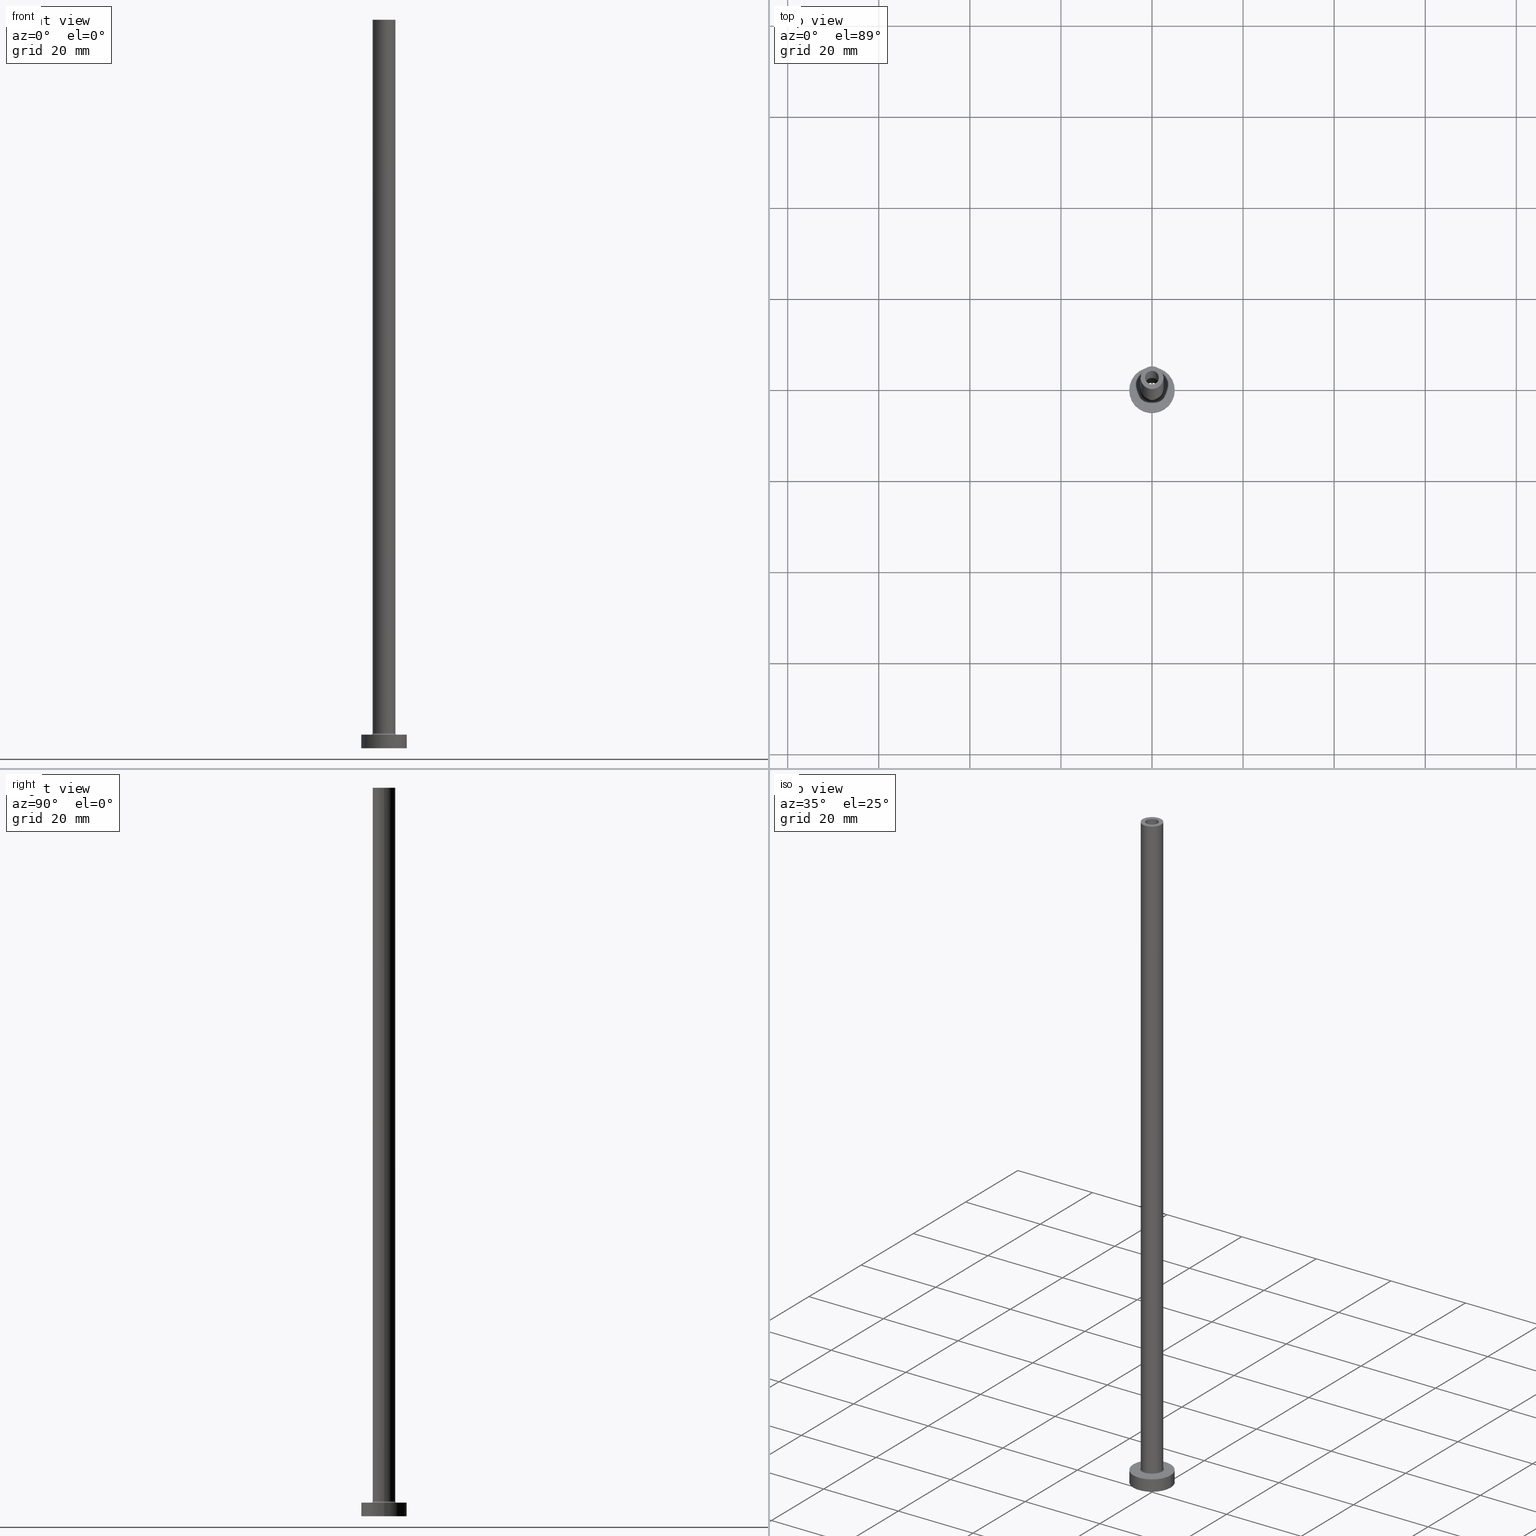
[diagram: canonical four-view strip — front | top / right | iso, engineering-drawing reading convention]
A machine part, canonical four-view strip (front | top / right | iso — engineering-drawing reading convention). The complete STEP part file that produces these views, byte-faithful:
ISO-10303-21;
HEADER;
FILE_DESCRIPTION (( 'STEP AP203' ),
    '1' );
FILE_NAME ('0fe4.STEP',
    '2023-02-13T12:04:21',
    ( '' ),
    ( '' ),
    'SwSTEP 2.0',
    'SolidWorks 2019',
    '' );
FILE_SCHEMA (( 'CONFIG_CONTROL_DESIGN' ));
ENDSEC;

DATA;
#1 = CARTESIAN_POINT ( 'NONE',  ( 0.000000000000000000, 0.000000000000000000, 3.000000000000000000 ) ) ;
#2 = MECHANICAL_CONTEXT ( 'NONE', #143, 'mechanical' ) ;
#3 = CARTESIAN_POINT ( 'NONE',  ( 5.000000000000000000, 6.123233995736766282E-16, 0.000000000000000000 ) ) ;
#4 = AXIS2_PLACEMENT_3D ( 'NONE', #27, #64, #416 ) ;
#5 = APPROVAL_PERSON_ORGANIZATION ( #171, #345, #421 ) ;
#6 = CARTESIAN_POINT ( 'NONE',  ( 2.500000000000000000, 3.061616997868383141E-16, 160.0000000000000000 ) ) ;
#7 = DIRECTION ( 'NONE',  ( -0.000000000000000000, -0.000000000000000000, -1.000000000000000000 ) ) ;
#8 = VERTEX_POINT ( 'NONE', #411 ) ;
#9 = ADVANCED_FACE ( 'NONE', ( #458 ), #134, .F. ) ;
#10 = ORIENTED_EDGE ( 'NONE', *, *, #455, .T. ) ;
#11 = AXIS2_PLACEMENT_3D ( 'NONE', #284, #309, #246 ) ;
#12 = CIRCLE ( 'NONE', #229, 2.799999999999999822 ) ;
#13 = EDGE_LOOP ( 'NONE', ( #403, #263, #367, #197 ) ) ;
#14 = ORIENTED_EDGE ( 'NONE', *, *, #42, .T. ) ;
#15 = EDGE_CURVE ( 'NONE', #311, #357, #83, .T. ) ;
#16 = CARTESIAN_POINT ( 'NONE',  ( -5.000000000000000000, 0.000000000000000000, 0.000000000000000000 ) ) ;
#17 = CIRCLE ( 'NONE', #149, 1.500000000000000222 ) ;
#18 = CARTESIAN_POINT ( 'NONE',  ( 0.000000000000000000, 0.000000000000000000, 160.0000000000000000 ) ) ;
#19 = CARTESIAN_POINT ( 'NONE',  ( 0.000000000000000000, 0.000000000000000000, 0.000000000000000000 ) ) ;
#20 = VERTEX_POINT ( 'NONE', #376 ) ;
#21 = CARTESIAN_POINT ( 'NONE',  ( 0.000000000000000000, 0.000000000000000000, 115.0000000000000000 ) ) ;
#22 = EDGE_CURVE ( 'NONE', #328, #231, #387, .T. ) ;
#23 = CARTESIAN_POINT ( 'NONE',  ( -1.650000000000000133, 0.000000000000000000, 119.6669047558312116 ) ) ;
#24 = FACE_OUTER_BOUND ( 'NONE', #151, .T. ) ;
#25 = AXIS2_PLACEMENT_3D ( 'NONE', #179, #153, #80 ) ;
#26 = CC_DESIGN_PERSON_AND_ORGANIZATION_ASSIGNMENT ( #175, #459, ( #215 ) ) ;
#27 = CARTESIAN_POINT ( 'NONE',  ( 0.000000000000000000, 0.000000000000000000, 160.0000000000000000 ) ) ;
#28 = LINE ( 'NONE', #406, #141 ) ;
#29 = DIRECTION ( 'NONE',  ( 0.000000000000000000, 0.000000000000000000, -1.000000000000000000 ) ) ;
#30 = DATE_AND_TIME ( #347, #447 ) ;
#31 = ORIENTED_EDGE ( 'NONE', *, *, #124, .T. ) ;
#32 = DATE_AND_TIME ( #348, #365 ) ;
#33 = AXIS2_PLACEMENT_3D ( 'NONE', #295, #44, #392 ) ;
#34 = AXIS2_PLACEMENT_3D ( 'NONE', #206, #373, #50 ) ;
#35 = DIRECTION ( 'NONE',  ( 0.000000000000000000, 0.000000000000000000, 1.000000000000000000 ) ) ;
#36 = DIRECTION ( 'NONE',  ( -1.000000000000000000, 0.000000000000000000, 0.000000000000000000 ) ) ;
#37 = APPLICATION_PROTOCOL_DEFINITION ( 'international standard', 'config_control_design', 1994, #143 ) ;
#38 = EDGE_CURVE ( 'NONE', #188, #417, #341, .T. ) ;
#39 = DIRECTION ( 'NONE',  ( 0.000000000000000000, 0.000000000000000000, -1.000000000000000000 ) ) ;
#40 = DIRECTION ( 'NONE',  ( -1.000000000000000000, 0.000000000000000000, 0.000000000000000000 ) ) ;
#41 = ORIENTED_EDGE ( 'NONE', *, *, #448, .F. ) ;
#42 = EDGE_CURVE ( 'NONE', #187, #128, #160, .T. ) ;
#43 = EDGE_LOOP ( 'NONE', ( #434, #394 ) ) ;
#44 = DIRECTION ( 'NONE',  ( 0.000000000000000000, 0.000000000000000000, 1.000000000000000000 ) ) ;
#45 = CC_DESIGN_PERSON_AND_ORGANIZATION_ASSIGNMENT ( #139, #66, ( #297 ) ) ;
#46 = ORIENTED_EDGE ( 'NONE', *, *, #227, .F. ) ;
#47 = CIRCLE ( 'NONE', #306, 5.000000000000000000 ) ;
#48 = ADVANCED_FACE ( 'NONE', ( #420 ), #446, .F. ) ;
#49 = APPROVAL ( #288, 'NEUR�EN�' ) ;
#50 = DIRECTION ( 'NONE',  ( -1.000000000000000000, 0.000000000000000000, 0.000000000000000000 ) ) ;
#51 = CIRCLE ( 'NONE', #371, 1.500000000000000222 ) ;
#52 = TOROIDAL_SURFACE ( 'NONE', #343, 2.799999999999999822, 0.2999999999999999889 ) ;
#53 = CYLINDRICAL_SURFACE ( 'NONE', #91, 2.500000000000000000 ) ;
#54 = DIRECTION ( 'NONE',  ( -1.000000000000000000, 0.000000000000000000, 0.000000000000000000 ) ) ;
#55 = EDGE_LOOP ( 'NONE', ( #402, #31, #10, #146 ) ) ;
#56 = ORIENTED_EDGE ( 'NONE', *, *, #15, .T. ) ;
#57 = CARTESIAN_POINT ( 'NONE',  ( -2.799999999999999822, 3.429011037612588783E-16, 3.299999999999997158 ) ) ;
#58 = ORIENTED_EDGE ( 'NONE', *, *, #38, .T. ) ;
#59 =( NAMED_UNIT ( * ) PLANE_ANGLE_UNIT ( ) SI_UNIT ( $, .RADIAN. ) );
#60 = ORIENTED_EDGE ( 'NONE', *, *, #193, .T. ) ;
#61 = CARTESIAN_POINT ( 'NONE',  ( 0.000000000000000000, 0.000000000000000000, 115.0000000000000000 ) ) ;
#62 = CYLINDRICAL_SURFACE ( 'NONE', #34, 2.500000000000000000 ) ;
#63 = LOCAL_TIME ( 13, 4, 21.00000000000000000, #391 ) ;
#64 = DIRECTION ( 'NONE',  ( 0.000000000000000000, 0.000000000000000000, 1.000000000000000000 ) ) ;
#65 = DIRECTION ( 'NONE',  ( -0.000000000000000000, -0.000000000000000000, -1.000000000000000000 ) ) ;
#66 = PERSON_AND_ORGANIZATION_ROLE ( 'design_owner' ) ;
#67 = PLANE ( 'NONE',  #350 ) ;
#68 = APPLICATION_PROTOCOL_DEFINITION ( 'international standard', 'config_control_design', 1994, #332 ) ;
#69 = CYLINDRICAL_SURFACE ( 'NONE', #172, 5.000000000000000000 ) ;
#70 = UNCERTAINTY_MEASURE_WITH_UNIT (LENGTH_MEASURE( 1.000000000000000082E-05 ), #443, 'distance_accuracy_value', 'NONE');
#71 = ADVANCED_FACE ( 'NONE', ( #130, #133 ), #67, .F. ) ;
#72 = APPROVAL_DATE_TIME ( #30, #372 ) ;
#73 = DIRECTION ( 'NONE',  ( 0.000000000000000000, 0.000000000000000000, 1.000000000000000000 ) ) ;
#74 = SECURITY_CLASSIFICATION_LEVEL ( 'unclassified' ) ;
#75 = FACE_BOUND ( 'NONE', #43, .T. ) ;
#76 = DIRECTION ( 'NONE',  ( 0.000000000000000000, 0.000000000000000000, 1.000000000000000000 ) ) ;
#77 = EDGE_CURVE ( 'NONE', #93, #128, #362, .T. ) ;
#78 = AXIS2_PLACEMENT_3D ( 'NONE', #398, #39, #112 ) ;
#79 = VECTOR ( 'NONE', #155, 1000.000000000000000 ) ;
#80 = DIRECTION ( 'NONE',  ( 1.000000000000000000, 0.000000000000000000, 0.000000000000000000 ) ) ;
#81 = ORIENTED_EDGE ( 'NONE', *, *, #322, .F. ) ;
#82 = ORIENTED_EDGE ( 'NONE', *, *, #340, .F. ) ;
#83 = CIRCLE ( 'NONE', #401, 1.500000000000000222 ) ;
#84 = APPROVAL_PERSON_ORGANIZATION ( #218, #49, #132 ) ;
#85 = ORIENTED_EDGE ( 'NONE', *, *, #195, .F. ) ;
#86 = CARTESIAN_POINT ( 'NONE',  ( 1.500000000000000222, 1.836970198721029934E-16, 160.0000000000000000 ) ) ;
#87 = ORIENTED_EDGE ( 'NONE', *, *, #119, .T. ) ;
#88 = CARTESIAN_POINT ( 'NONE',  ( 0.000000000000000000, 0.000000000000000000, 3.000000000000000000 ) ) ;
#89 = EDGE_CURVE ( 'NONE', #417, #393, #210, .T. ) ;
#90 = AXIS2_PLACEMENT_3D ( 'NONE', #61, #35, #100 ) ;
#91 = AXIS2_PLACEMENT_3D ( 'NONE', #18, #158, #54 ) ;
#92 = FACE_OUTER_BOUND ( 'NONE', #327, .T. ) ;
#93 = VERTEX_POINT ( 'NONE', #286 ) ;
#94 = CARTESIAN_POINT ( 'NONE',  ( 0.000000000000000000, 0.000000000000000000, 160.0000000000000000 ) ) ;
#95 = CARTESIAN_POINT ( 'NONE',  ( -1.650000000000000133, 0.000000000000000000, 115.0000000000000000 ) ) ;
#96 = ORIENTED_EDGE ( 'NONE', *, *, #384, .F. ) ;
#97 = DIRECTION ( 'NONE',  ( -0.000000000000000000, -0.000000000000000000, -1.000000000000000000 ) ) ;
#98 = EDGE_CURVE ( 'NONE', #187, #20, #140, .T. ) ;
#99 =( NAMED_UNIT ( * ) SI_UNIT ( $, .STERADIAN. ) SOLID_ANGLE_UNIT ( ) );
#100 = DIRECTION ( 'NONE',  ( 1.000000000000000000, 0.000000000000000000, 0.000000000000000000 ) ) ;
#101 = AXIS2_PLACEMENT_3D ( 'NONE', #259, #182, #225 ) ;
#102 = DIRECTION ( 'NONE',  ( 1.000000000000000000, 0.000000000000000000, 0.000000000000000000 ) ) ;
#103 = CALENDAR_DATE ( 2023, 13, 2 ) ;
#104 = CARTESIAN_POINT ( 'NONE',  ( 0.000000000000000000, 0.000000000000000000, 0.000000000000000000 ) ) ;
#105 = CALENDAR_DATE ( 2023, 13, 2 ) ;
#106 = PLANE ( 'NONE',  #101 ) ;
#107 = EDGE_CURVE ( 'NONE', #386, #264, #17, .T. ) ;
#108 = ORIENTED_EDGE ( 'NONE', *, *, #115, .F. ) ;
#109 = ORIENTED_EDGE ( 'NONE', *, *, #419, .T. ) ;
#110 = CIRCLE ( 'NONE', #299, 2.500000000000000000 ) ;
#111 = VECTOR ( 'NONE', #298, 1000.000000000000000 ) ;
#112 = DIRECTION ( 'NONE',  ( -1.000000000000000000, 0.000000000000000000, 0.000000000000000000 ) ) ;
#113 = PERSON_AND_ORGANIZATION_ROLE ( 'design_supplier' ) ;
#114 = FACE_OUTER_BOUND ( 'NONE', #323, .T. ) ;
#115 = EDGE_CURVE ( 'NONE', #93, #8, #407, .T. ) ;
#116 = CARTESIAN_POINT ( 'NONE',  ( -1.500000000000000222, 0.000000000000000000, 160.0000000000000000 ) ) ;
#117 = FACE_OUTER_BOUND ( 'NONE', #457, .T. ) ;
#118 = LOCAL_TIME ( 13, 4, 21.00000000000000000, #244 ) ;
#119 = EDGE_CURVE ( 'NONE', #386, #311, #452, .T. ) ;
#120 = AXIS2_PLACEMENT_3D ( 'NONE', #316, #290, #453 ) ;
#121 = DIRECTION ( 'NONE',  ( -1.000000000000000000, 0.000000000000000000, 0.000000000000000000 ) ) ;
#122 = ORIENTED_EDGE ( 'NONE', *, *, #124, .F. ) ;
#123 = CARTESIAN_POINT ( 'NONE',  ( -1.500000000000000222, 0.000000000000000000, 115.0000000000000000 ) ) ;
#124 = EDGE_CURVE ( 'NONE', #188, #440, #380, .T. ) ;
#125 = CARTESIAN_POINT ( 'NONE',  ( 0.000000000000000000, 0.000000000000000000, 3.299999999999997158 ) ) ;
#126 = PRODUCT_DEFINITION_FORMATION_WITH_SPECIFIED_SOURCE ( 'LIBOVOLN�', '', #297, .NOT_KNOWN. ) ;
#127 = FACE_BOUND ( 'NONE', #200, .T. ) ;
#128 = VERTEX_POINT ( 'NONE', #276 ) ;
#129 = ORIENTED_EDGE ( 'NONE', *, *, #331, .F. ) ;
#130 = FACE_BOUND ( 'NONE', #194, .T. ) ;
#131 = CYLINDRICAL_SURFACE ( 'NONE', #191, 1.650000000000000133 ) ;
#132 = APPROVAL_ROLE ( '' ) ;
#133 = FACE_OUTER_BOUND ( 'NONE', #442, .T. ) ;
#134 = CYLINDRICAL_SURFACE ( 'NONE', #11, 1.500000000000000222 ) ;
#135 = DIRECTION ( 'NONE',  ( 0.000000000000000000, 0.000000000000000000, 1.000000000000000000 ) ) ;
#136 = ORIENTED_EDGE ( 'NONE', *, *, #399, .T. ) ;
#137 = APPROVAL_DATE_TIME ( #32, #49 ) ;
#138 = CARTESIAN_POINT ( 'NONE',  ( 0.000000000000000000, 0.000000000000000000, 3.000000000000000000 ) ) ;
#139 = PERSON_AND_ORGANIZATION ( #257, #326 ) ;
#140 = CIRCLE ( 'NONE', #4, 2.500000000000000000 ) ;
#141 = VECTOR ( 'NONE', #370, 1000.000000000000000 ) ;
#142 = LINE ( 'NONE', #344, #79 ) ;
#143 = APPLICATION_CONTEXT ( 'configuration controlled 3d designs of mechanical parts and assemblies' ) ;
#144 = ADVANCED_FACE ( 'NONE', ( #165 ), #131, .F. ) ;
#145 = DIRECTION ( 'NONE',  ( -0.000000000000000000, -0.000000000000000000, -1.000000000000000000 ) ) ;
#146 = ORIENTED_EDGE ( 'NONE', *, *, #89, .F. ) ;
#147 = FACE_OUTER_BOUND ( 'NONE', #337, .T. ) ;
#148 = ORIENTED_EDGE ( 'NONE', *, *, #419, .F. ) ;
#149 = AXIS2_PLACEMENT_3D ( 'NONE', #94, #236, #102 ) ;
#150 = PRODUCT_DEFINITION_SHAPE ( 'NONE', 'NONE',  #215 ) ;
#151 = EDGE_LOOP ( 'NONE', ( #269, #415 ) ) ;
#152 = VERTEX_POINT ( 'NONE', #169 ) ;
#153 = DIRECTION ( 'NONE',  ( 0.000000000000000000, 0.000000000000000000, 1.000000000000000000 ) ) ;
#154 = CIRCLE ( 'NONE', #25, 5.000000000000000000 ) ;
#155 = DIRECTION ( 'NONE',  ( -0.000000000000000000, -0.000000000000000000, -1.000000000000000000 ) ) ;
#156 = ADVANCED_BREP_SHAPE_REPRESENTATION ( '0fe4', ( #356, #120 ), #439 ) ;
#157 = ORIENTED_EDGE ( 'NONE', *, *, #322, .T. ) ;
#158 = DIRECTION ( 'NONE',  ( -0.000000000000000000, -0.000000000000000000, -1.000000000000000000 ) ) ;
#159 = ORIENTED_EDGE ( 'NONE', *, *, #436, .T. ) ;
#160 = LINE ( 'NONE', #305, #223 ) ;
#161 = CIRCLE ( 'NONE', #33, 5.000000000000000000 ) ;
#162 = SECURITY_CLASSIFICATION ( '', '', #74 ) ;
#163 = DIRECTION ( 'NONE',  ( 0.000000000000000000, 0.000000000000000000, 1.000000000000000000 ) ) ;
#164 = ORIENTED_EDGE ( 'NONE', *, *, #273, .F. ) ;
#165 = FACE_OUTER_BOUND ( 'NONE', #55, .T. ) ;
#166 = COORDINATED_UNIVERSAL_TIME_OFFSET ( 1, 0, .AHEAD. ) ;
#167 = ORIENTED_EDGE ( 'NONE', *, *, #22, .T. ) ;
#168 = APPROVAL_STATUS ( 'not_yet_approved' ) ;
#169 = CARTESIAN_POINT ( 'NONE',  ( 2.799999999999999822, 0.000000000000000000, 2.999999999999998668 ) ) ;
#170 = CLOSED_SHELL ( 'NONE', ( #260, #144, #308, #368, #294, #320, #237, #71, #433, #334, #48, #361, #314, #9 ) ) ;
#171 = PERSON_AND_ORGANIZATION ( #257, #326 ) ;
#172 = AXIS2_PLACEMENT_3D ( 'NONE', #217, #353, #36 ) ;
#173 = DIRECTION ( 'NONE',  ( 0.000000000000000000, 0.000000000000000000, -1.000000000000000000 ) ) ;
#174 = ORIENTED_EDGE ( 'NONE', *, *, #211, .T. ) ;
#175 = PERSON_AND_ORGANIZATION ( #257, #326 ) ;
#176 = DIRECTION ( 'NONE',  ( 1.000000000000000000, 0.000000000000000000, 0.000000000000000000 ) ) ;
#177 = DATE_AND_TIME ( #352, #63 ) ;
#178 = ORIENTED_EDGE ( 'NONE', *, *, #98, .F. ) ;
#179 = CARTESIAN_POINT ( 'NONE',  ( 0.000000000000000000, 0.000000000000000000, 0.000000000000000000 ) ) ;
#180 = EDGE_CURVE ( 'NONE', #393, #440, #304, .T. ) ;
#181 = AXIS2_PLACEMENT_3D ( 'NONE', #339, #203, #230 ) ;
#182 = DIRECTION ( 'NONE',  ( 0.000000000000000000, 0.000000000000000000, 1.000000000000000000 ) ) ;
#183 = CC_DESIGN_DATE_AND_TIME_ASSIGNMENT ( #381, #213, ( #162 ) ) ;
#184 = ORIENTED_EDGE ( 'NONE', *, *, #278, .T. ) ;
#185 = ORIENTED_EDGE ( 'NONE', *, *, #399, .F. ) ;
#186 = DIRECTION ( 'NONE',  ( 1.000000000000000000, 0.000000000000000000, 0.000000000000000000 ) ) ;
#187 = VERTEX_POINT ( 'NONE', #6 ) ;
#188 = VERTEX_POINT ( 'NONE', #424 ) ;
#189 = CARTESIAN_POINT ( 'NONE',  ( 1.500000000000000222, 1.836970198721029934E-16, 115.0000000000000000 ) ) ;
#190 = ORIENTED_EDGE ( 'NONE', *, *, #107, .F. ) ;
#191 = AXIS2_PLACEMENT_3D ( 'NONE', #277, #241, #413 ) ;
#192 = APPROVAL_PERSON_ORGANIZATION ( #313, #372, #253 ) ;
#193 = EDGE_CURVE ( 'NONE', #264, #386, #431, .T. ) ;
#194 = EDGE_LOOP ( 'NONE', ( #287, #400 ) ) ;
#195 = EDGE_CURVE ( 'NONE', #389, #409, #161, .T. ) ;
#196 = AXIS2_PLACEMENT_3D ( 'NONE', #1, #7, #321 ) ;
#197 = ORIENTED_EDGE ( 'NONE', *, *, #436, .F. ) ;
#198 = CC_DESIGN_SECURITY_CLASSIFICATION ( #162, ( #126 ) ) ;
#199 = DIRECTION ( 'NONE',  ( 0.000000000000000000, 0.000000000000000000, 1.000000000000000000 ) ) ;
#200 = EDGE_LOOP ( 'NONE', ( #445, #190 ) ) ;
#201 = DIRECTION ( 'NONE',  ( -0.000000000000000000, -0.000000000000000000, -1.000000000000000000 ) ) ;
#202 = DIRECTION ( 'NONE',  ( 1.000000000000000000, 0.000000000000000000, 0.000000000000000000 ) ) ;
#203 = DIRECTION ( 'NONE',  ( 0.000000000000000000, -1.000000000000000000, 0.000000000000000000 ) ) ;
#204 = DIRECTION ( 'NONE',  ( 1.000000000000000000, 0.000000000000000000, 0.000000000000000000 ) ) ;
#205 = CC_DESIGN_APPROVAL ( #372, ( #126 ) ) ;
#206 = CARTESIAN_POINT ( 'NONE',  ( 0.000000000000000000, 0.000000000000000000, 160.0000000000000000 ) ) ;
#207 = ORIENTED_EDGE ( 'NONE', *, *, #211, .F. ) ;
#208 = DIRECTION ( 'NONE',  ( -1.000000000000000000, 1.224646799147353207E-16, 0.000000000000000000 ) ) ;
#209 = DATE_AND_TIME ( #105, #118 ) ;
#210 = LINE ( 'NONE', #23, #425 ) ;
#211 = EDGE_CURVE ( 'NONE', #389, #328, #319, .T. ) ;
#212 = ORIENTED_EDGE ( 'NONE', *, *, #89, .T. ) ;
#213 = DATE_TIME_ROLE ( 'classification_date' ) ;
#214 = DIRECTION ( 'NONE',  ( 0.000000000000000000, 0.000000000000000000, 1.000000000000000000 ) ) ;
#215 = PRODUCT_DEFINITION ( 'NEZN�M�', '', #126, #422 ) ;
#216 = AXIS2_PLACEMENT_3D ( 'NONE', #423, #429, #40 ) ;
#217 = CARTESIAN_POINT ( 'NONE',  ( 0.000000000000000000, 0.000000000000000000, 3.000000000000000000 ) ) ;
#218 = PERSON_AND_ORGANIZATION ( #257, #326 ) ;
#219 = DIRECTION ( 'NONE',  ( 1.000000000000000000, 0.000000000000000000, 0.000000000000000000 ) ) ;
#220 = PERSON_AND_ORGANIZATION ( #257, #326 ) ;
#221 = CARTESIAN_POINT ( 'NONE',  ( 0.000000000000000000, 0.000000000000000000, 115.0000000000000000 ) ) ;
#222 = EDGE_LOOP ( 'NONE', ( #330, #56 ) ) ;
#223 = VECTOR ( 'NONE', #97, 1000.000000000000000 ) ;
#224 = AXIS2_PLACEMENT_3D ( 'NONE', #21, #199, #412 ) ;
#225 = DIRECTION ( 'NONE',  ( 1.000000000000000000, 0.000000000000000000, -0.000000000000000000 ) ) ;
#226 = CARTESIAN_POINT ( 'NONE',  ( 0.000000000000000000, 0.000000000000000000, 115.0000000000000000 ) ) ;
#227 = EDGE_CURVE ( 'NONE', #20, #187, #110, .T. ) ;
#228 = CC_DESIGN_PERSON_AND_ORGANIZATION_ASSIGNMENT ( #426, #418, ( #126 ) ) ;
#229 = AXIS2_PLACEMENT_3D ( 'NONE', #88, #201, #232 ) ;
#230 = DIRECTION ( 'NONE',  ( 0.000000000000000000, 0.000000000000000000, -1.000000000000000000 ) ) ;
#231 = VERTEX_POINT ( 'NONE', #16 ) ;
#232 = DIRECTION ( 'NONE',  ( 1.000000000000000000, 0.000000000000000000, 0.000000000000000000 ) ) ;
#233 = ORIENTED_EDGE ( 'NONE', *, *, #107, .T. ) ;
#234 = AXIS2_PLACEMENT_3D ( 'NONE', #364, #289, #219 ) ;
#235 = PLANE ( 'NONE',  #351 ) ;
#236 = DIRECTION ( 'NONE',  ( 0.000000000000000000, 0.000000000000000000, 1.000000000000000000 ) ) ;
#237 = ADVANCED_FACE ( 'NONE', ( #75, #117 ), #106, .T. ) ;
#238 = LINE ( 'NONE', #335, #111 ) ;
#239 = DIRECTION ( 'NONE',  ( 1.000000000000000000, 0.000000000000000000, 0.000000000000000000 ) ) ;
#240 = DIRECTION ( 'NONE',  ( 0.000000000000000000, 0.000000000000000000, 1.000000000000000000 ) ) ;
#241 = DIRECTION ( 'NONE',  ( 0.000000000000000000, 0.000000000000000000, -1.000000000000000000 ) ) ;
#242 = AXIS2_PLACEMENT_3D ( 'NONE', #377, #65, #254 ) ;
#243 = DIRECTION ( 'NONE',  ( 1.224646799147353207E-16, 1.000000000000000000, -0.000000000000000000 ) ) ;
#244 = COORDINATED_UNIVERSAL_TIME_OFFSET ( 1, 0, .AHEAD. ) ;
#245 = PRODUCT_RELATED_PRODUCT_CATEGORY ( 'detail', '', ( #297 ) ) ;
#246 = DIRECTION ( 'NONE',  ( -1.000000000000000000, 0.000000000000000000, 0.000000000000000000 ) ) ;
#247 = DIRECTION ( 'NONE',  ( 1.000000000000000000, 0.000000000000000000, -0.000000000000000000 ) ) ;
#248 = EDGE_LOOP ( 'NONE', ( #178, #14, #136, #129 ) ) ;
#249 = AXIS2_PLACEMENT_3D ( 'NONE', #383, #346, #204 ) ;
#250 = CIRCLE ( 'NONE', #388, 2.500000000000000000 ) ;
#251 = EDGE_LOOP ( 'NONE', ( #60, #87, #164, #96 ) ) ;
#252 = DIRECTION ( 'NONE',  ( 0.000000000000000000, 0.000000000000000000, 1.000000000000000000 ) ) ;
#253 = APPROVAL_ROLE ( '' ) ;
#254 = DIRECTION ( 'NONE',  ( 1.000000000000000000, 0.000000000000000000, 0.000000000000000000 ) ) ;
#255 = FACE_OUTER_BOUND ( 'NONE', #13, .T. ) ;
#256 = AXIS2_PLACEMENT_3D ( 'NONE', #342, #349, #202 ) ;
#257 = PERSON ( 'NEUR�EN�', 'NEUR�EN�', 'NEUR�EN�', ('NEUR�EN�'), ('NEUR�EN�'), ('NEUR�EN�') ) ;
#258 = AXIS2_PLACEMENT_3D ( 'NONE', #19, #333, #410 ) ;
#259 = CARTESIAN_POINT ( 'NONE',  ( 0.000000000000000000, 0.000000000000000000, 3.000000000000000000 ) ) ;
#260 = ADVANCED_FACE ( 'NONE', ( #292 ), #427, .F. ) ;
#261 = CC_DESIGN_PERSON_AND_ORGANIZATION_ASSIGNMENT ( #461, #113, ( #126 ) ) ;
#262 = ORIENTED_EDGE ( 'NONE', *, *, #384, .T. ) ;
#263 = ORIENTED_EDGE ( 'NONE', *, *, #115, .T. ) ;
#264 = VERTEX_POINT ( 'NONE', #116 ) ;
#265 = EDGE_CURVE ( 'NONE', #152, #8, #396, .T. ) ;
#266 = ORIENTED_EDGE ( 'NONE', *, *, #278, .F. ) ;
#267 = AXIS2_PLACEMENT_3D ( 'NONE', #104, #214, #374 ) ;
#268 = AXIS2_PLACEMENT_3D ( 'NONE', #226, #324, #247 ) ;
#269 = ORIENTED_EDGE ( 'NONE', *, *, #227, .T. ) ;
#270 = FACE_OUTER_BOUND ( 'NONE', #366, .T. ) ;
#271 = CARTESIAN_POINT ( 'NONE',  ( 0.000000000000000000, 0.000000000000000000, 119.6669047558312116 ) ) ;
#272 = AXIS2_PLACEMENT_3D ( 'NONE', #57, #243, #208 ) ;
#273 = EDGE_CURVE ( 'NONE', #357, #311, #51, .T. ) ;
#274 = CIRCLE ( 'NONE', #258, 1.650000000000000133 ) ;
#275 = CARTESIAN_POINT ( 'NONE',  ( -1.650000000000000133, 0.000000000000000000, 0.000000000000000000 ) ) ;
#276 = CARTESIAN_POINT ( 'NONE',  ( 2.500000000000000000, 3.061616997868383141E-16, 3.299999999999997158 ) ) ;
#277 = CARTESIAN_POINT ( 'NONE',  ( 0.000000000000000000, 0.000000000000000000, 119.6669047558312116 ) ) ;
#278 = EDGE_CURVE ( 'NONE', #231, #328, #154, .T. ) ;
#279 = COORDINATED_UNIVERSAL_TIME_OFFSET ( 1, 0, .AHEAD. ) ;
#280 = DIRECTION ( 'NONE',  ( 1.000000000000000000, 0.000000000000000000, -0.000000000000000000 ) ) ;
#281 = VECTOR ( 'NONE', #145, 1000.000000000000000 ) ;
#282 = LOCAL_TIME ( 13, 4, 21.00000000000000000, #166 ) ;
#283 = COORDINATED_UNIVERSAL_TIME_OFFSET ( 1, 0, .AHEAD. ) ;
#284 = CARTESIAN_POINT ( 'NONE',  ( 0.000000000000000000, 0.000000000000000000, 160.0000000000000000 ) ) ;
#285 = ORIENTED_EDGE ( 'NONE', *, *, #22, .F. ) ;
#286 = CARTESIAN_POINT ( 'NONE',  ( -2.500000000000000000, 0.000000000000000000, 3.299999999999997158 ) ) ;
#287 = ORIENTED_EDGE ( 'NONE', *, *, #180, .F. ) ;
#288 = APPROVAL_STATUS ( 'not_yet_approved' ) ;
#289 = DIRECTION ( 'NONE',  ( 0.000000000000000000, 0.000000000000000000, 1.000000000000000000 ) ) ;
#290 = DIRECTION ( 'NONE',  ( 0.000000000000000000, 0.000000000000000000, 1.000000000000000000 ) ) ;
#291 = DIRECTION ( 'NONE',  ( 0.000000000000000000, 0.000000000000000000, 1.000000000000000000 ) ) ;
#292 = FACE_OUTER_BOUND ( 'NONE', #251, .T. ) ;
#293 = EDGE_LOOP ( 'NONE', ( #108, #185, #159, #41 ) ) ;
#294 = ADVANCED_FACE ( 'NONE', ( #114 ), #390, .T. ) ;
#295 = CARTESIAN_POINT ( 'NONE',  ( 0.000000000000000000, 0.000000000000000000, 3.000000000000000000 ) ) ;
#296 = AXIS2_PLACEMENT_3D ( 'NONE', #271, #336, #121 ) ;
#297 = PRODUCT ( '0fe4', '0fe4', '', ( #2 ) ) ;
#298 = DIRECTION ( 'NONE',  ( -0.000000000000000000, -0.000000000000000000, -1.000000000000000000 ) ) ;
#299 = AXIS2_PLACEMENT_3D ( 'NONE', #363, #291, #186 ) ;
#300 = CYLINDRICAL_SURFACE ( 'NONE', #296, 1.650000000000000133 ) ;
#301 = DIRECTION ( 'NONE',  ( 1.000000000000000000, 0.000000000000000000, -0.000000000000000000 ) ) ;
#302 = CARTESIAN_POINT ( 'NONE',  ( 5.000000000000000000, 6.123233995736766282E-16, 3.000000000000000000 ) ) ;
#303 = CC_DESIGN_DATE_AND_TIME_ASSIGNMENT ( #209, #456, ( #215 ) ) ;
#304 = CIRCLE ( 'NONE', #242, 1.650000000000000133 ) ;
#305 = CARTESIAN_POINT ( 'NONE',  ( 2.500000000000000000, 3.061616997868383141E-16, 160.0000000000000000 ) ) ;
#306 = AXIS2_PLACEMENT_3D ( 'NONE', #138, #73, #317 ) ;
#307 = DIRECTION ( 'NONE',  ( 0.000000000000000000, 0.000000000000000000, -1.000000000000000000 ) ) ;
#308 = ADVANCED_FACE ( 'NONE', ( #255 ), #52, .F. ) ;
#309 = DIRECTION ( 'NONE',  ( 0.000000000000000000, 0.000000000000000000, -1.000000000000000000 ) ) ;
#310 = APPROVAL_DATE_TIME ( #177, #345 ) ;
#311 = VERTEX_POINT ( 'NONE', #189 ) ;
#312 = CARTESIAN_POINT ( 'NONE',  ( 0.000000000000000000, 0.000000000000000000, 115.0000000000000000 ) ) ;
#313 = PERSON_AND_ORGANIZATION ( #257, #326 ) ;
#314 = ADVANCED_FACE ( 'NONE', ( #315, #147 ), #430, .F. ) ;
#315 = FACE_BOUND ( 'NONE', #222, .T. ) ;
#316 = CARTESIAN_POINT ( 'NONE',  ( 0.000000000000000000, 0.000000000000000000, 0.000000000000000000 ) ) ;
#317 = DIRECTION ( 'NONE',  ( 1.000000000000000000, 0.000000000000000000, 0.000000000000000000 ) ) ;
#318 = CIRCLE ( 'NONE', #224, 1.650000000000000133 ) ;
#319 = LINE ( 'NONE', #358, #281 ) ;
#320 = ADVANCED_FACE ( 'NONE', ( #385 ), #69, .T. ) ;
#321 = DIRECTION ( 'NONE',  ( 1.000000000000000000, 0.000000000000000000, 0.000000000000000000 ) ) ;
#322 = EDGE_CURVE ( 'NONE', #409, #389, #47, .T. ) ;
#323 = EDGE_LOOP ( 'NONE', ( #85, #174, #167, #148 ) ) ;
#324 = DIRECTION ( 'NONE',  ( 0.000000000000000000, 0.000000000000000000, 1.000000000000000000 ) ) ;
#325 = VECTOR ( 'NONE', #307, 1000.000000000000000 ) ;
#326 = ORGANIZATION ( 'NEUR�EN�', 'NEUR�EN�', '' ) ;
#327 = EDGE_LOOP ( 'NONE', ( #354, #46, #369, #375 ) ) ;
#328 = VERTEX_POINT ( 'NONE', #3 ) ;
#329 = EDGE_LOOP ( 'NONE', ( #207, #81, #109, #184 ) ) ;
#330 = ORIENTED_EDGE ( 'NONE', *, *, #273, .T. ) ;
#331 = EDGE_CURVE ( 'NONE', #20, #93, #142, .T. ) ;
#332 = APPLICATION_CONTEXT ( 'configuration controlled 3d designs of mechanical parts and assemblies' ) ;
#333 = DIRECTION ( 'NONE',  ( -0.000000000000000000, -0.000000000000000000, -1.000000000000000000 ) ) ;
#334 = ADVANCED_FACE ( 'NONE', ( #127, #24 ), #235, .T. ) ;
#335 = CARTESIAN_POINT ( 'NONE',  ( -5.000000000000000000, 0.000000000000000000, 3.000000000000000000 ) ) ;
#336 = DIRECTION ( 'NONE',  ( 0.000000000000000000, 0.000000000000000000, -1.000000000000000000 ) ) ;
#337 = EDGE_LOOP ( 'NONE', ( #82, #451 ) ) ;
#338 = CARTESIAN_POINT ( 'NONE',  ( 1.500000000000000222, 1.836970198721029934E-16, 160.0000000000000000 ) ) ;
#339 = CARTESIAN_POINT ( 'NONE',  ( 2.799999999999999822, 0.000000000000000000, 3.299999999999997158 ) ) ;
#340 = EDGE_CURVE ( 'NONE', #417, #188, #318, .T. ) ;
#341 = CIRCLE ( 'NONE', #90, 1.650000000000000133 ) ;
#342 = CARTESIAN_POINT ( 'NONE',  ( 0.000000000000000000, 0.000000000000000000, 3.299999999999997158 ) ) ;
#343 = AXIS2_PLACEMENT_3D ( 'NONE', #395, #76, #176 ) ;
#344 = CARTESIAN_POINT ( 'NONE',  ( -2.500000000000000000, 0.000000000000000000, 160.0000000000000000 ) ) ;
#345 = APPROVAL ( #355, 'NEUR�EN�' ) ;
#346 = DIRECTION ( 'NONE',  ( 0.000000000000000000, 0.000000000000000000, 1.000000000000000000 ) ) ;
#347 = CALENDAR_DATE ( 2023, 13, 2 ) ;
#348 = CALENDAR_DATE ( 2023, 13, 2 ) ;
#349 = DIRECTION ( 'NONE',  ( 0.000000000000000000, 0.000000000000000000, 1.000000000000000000 ) ) ;
#350 = AXIS2_PLACEMENT_3D ( 'NONE', #460, #135, #280 ) ;
#351 = AXIS2_PLACEMENT_3D ( 'NONE', #441, #240, #301 ) ;
#352 = CALENDAR_DATE ( 2023, 13, 2 ) ;
#353 = DIRECTION ( 'NONE',  ( -0.000000000000000000, -0.000000000000000000, -1.000000000000000000 ) ) ;
#354 = ORIENTED_EDGE ( 'NONE', *, *, #42, .F. ) ;
#355 = APPROVAL_STATUS ( 'not_yet_approved' ) ;
#356 = MANIFOLD_SOLID_BREP ( 'Odebrat vysunut�m4', #170 ) ;
#357 = VERTEX_POINT ( 'NONE', #123 ) ;
#358 = CARTESIAN_POINT ( 'NONE',  ( 5.000000000000000000, 6.123233995736766282E-16, 3.000000000000000000 ) ) ;
#359 = PERSON_AND_ORGANIZATION_ROLE ( 'classification_officer' ) ;
#360 = DIRECTION ( 'NONE',  ( 1.000000000000000000, 0.000000000000000000, 0.000000000000000000 ) ) ;
#361 = ADVANCED_FACE ( 'NONE', ( #270 ), #300, .F. ) ;
#362 = CIRCLE ( 'NONE', #256, 2.500000000000000000 ) ;
#363 = CARTESIAN_POINT ( 'NONE',  ( 0.000000000000000000, 0.000000000000000000, 160.0000000000000000 ) ) ;
#364 = CARTESIAN_POINT ( 'NONE',  ( 0.000000000000000000, 0.000000000000000000, 160.0000000000000000 ) ) ;
#365 = LOCAL_TIME ( 13, 4, 21.00000000000000000, #279 ) ;
#366 = EDGE_LOOP ( 'NONE', ( #122, #58, #212, #405 ) ) ;
#367 = ORIENTED_EDGE ( 'NONE', *, *, #265, .F. ) ;
#368 = ADVANCED_FACE ( 'NONE', ( #444 ), #62, .T. ) ;
#369 = ORIENTED_EDGE ( 'NONE', *, *, #331, .T. ) ;
#370 = DIRECTION ( 'NONE',  ( 0.000000000000000000, 0.000000000000000000, -1.000000000000000000 ) ) ;
#371 = AXIS2_PLACEMENT_3D ( 'NONE', #221, #252, #360 ) ;
#372 = APPROVAL ( #168, 'NEUR�EN�' ) ;
#373 = DIRECTION ( 'NONE',  ( -0.000000000000000000, -0.000000000000000000, -1.000000000000000000 ) ) ;
#374 = DIRECTION ( 'NONE',  ( 1.000000000000000000, 0.000000000000000000, 0.000000000000000000 ) ) ;
#375 = ORIENTED_EDGE ( 'NONE', *, *, #77, .T. ) ;
#376 = CARTESIAN_POINT ( 'NONE',  ( -2.500000000000000000, 0.000000000000000000, 160.0000000000000000 ) ) ;
#377 = CARTESIAN_POINT ( 'NONE',  ( 0.000000000000000000, 0.000000000000000000, 0.000000000000000000 ) ) ;
#378 = CC_DESIGN_APPROVAL ( #345, ( #215 ) ) ;
#379 = ORIENTED_EDGE ( 'NONE', *, *, #119, .F. ) ;
#380 = LINE ( 'NONE', #449, #325 ) ;
#381 = DATE_AND_TIME ( #103, #282 ) ;
#382 = ORIENTED_EDGE ( 'NONE', *, *, #15, .F. ) ;
#383 = CARTESIAN_POINT ( 'NONE',  ( 0.000000000000000000, 0.000000000000000000, 3.299999999999997158 ) ) ;
#384 = EDGE_CURVE ( 'NONE', #264, #357, #28, .T. ) ;
#385 = FACE_OUTER_BOUND ( 'NONE', #329, .T. ) ;
#386 = VERTEX_POINT ( 'NONE', #86 ) ;
#387 = CIRCLE ( 'NONE', #267, 5.000000000000000000 ) ;
#388 = AXIS2_PLACEMENT_3D ( 'NONE', #125, #163, #404 ) ;
#389 = VERTEX_POINT ( 'NONE', #302 ) ;
#390 = CYLINDRICAL_SURFACE ( 'NONE', #216, 5.000000000000000000 ) ;
#391 = COORDINATED_UNIVERSAL_TIME_OFFSET ( 1, 0, .AHEAD. ) ;
#392 = DIRECTION ( 'NONE',  ( 1.000000000000000000, 0.000000000000000000, 0.000000000000000000 ) ) ;
#393 = VERTEX_POINT ( 'NONE', #275 ) ;
#394 = ORIENTED_EDGE ( 'NONE', *, *, #448, .T. ) ;
#395 = CARTESIAN_POINT ( 'NONE',  ( 0.000000000000000000, 0.000000000000000000, 3.299999999999997158 ) ) ;
#396 = CIRCLE ( 'NONE', #196, 2.799999999999999822 ) ;
#397 = ORIENTED_EDGE ( 'NONE', *, *, #195, .T. ) ;
#398 = CARTESIAN_POINT ( 'NONE',  ( 0.000000000000000000, 0.000000000000000000, 160.0000000000000000 ) ) ;
#399 = EDGE_CURVE ( 'NONE', #128, #93, #250, .T. ) ;
#400 = ORIENTED_EDGE ( 'NONE', *, *, #455, .F. ) ;
#401 = AXIS2_PLACEMENT_3D ( 'NONE', #312, #454, #239 ) ;
#402 = ORIENTED_EDGE ( 'NONE', *, *, #340, .T. ) ;
#403 = ORIENTED_EDGE ( 'NONE', *, *, #77, .F. ) ;
#404 = DIRECTION ( 'NONE',  ( 1.000000000000000000, 0.000000000000000000, 0.000000000000000000 ) ) ;
#405 = ORIENTED_EDGE ( 'NONE', *, *, #180, .T. ) ;
#406 = CARTESIAN_POINT ( 'NONE',  ( -1.500000000000000222, 0.000000000000000000, 160.0000000000000000 ) ) ;
#407 = CIRCLE ( 'NONE', #272, 0.2999999999999999334 ) ;
#408 = CIRCLE ( 'NONE', #181, 0.2999999999999999334 ) ;
#409 = VERTEX_POINT ( 'NONE', #450 ) ;
#410 = DIRECTION ( 'NONE',  ( 1.000000000000000000, 0.000000000000000000, 0.000000000000000000 ) ) ;
#411 = CARTESIAN_POINT ( 'NONE',  ( -2.799999999999999822, 3.429011037612589276E-16, 2.999999999999998668 ) ) ;
#412 = DIRECTION ( 'NONE',  ( 1.000000000000000000, 0.000000000000000000, 0.000000000000000000 ) ) ;
#413 = DIRECTION ( 'NONE',  ( -1.000000000000000000, 0.000000000000000000, 0.000000000000000000 ) ) ;
#414 = SHAPE_DEFINITION_REPRESENTATION ( #150, #156 ) ;
#415 = ORIENTED_EDGE ( 'NONE', *, *, #98, .T. ) ;
#416 = DIRECTION ( 'NONE',  ( 1.000000000000000000, 0.000000000000000000, 0.000000000000000000 ) ) ;
#417 = VERTEX_POINT ( 'NONE', #95 ) ;
#418 = PERSON_AND_ORGANIZATION_ROLE ( 'creator' ) ;
#419 = EDGE_CURVE ( 'NONE', #409, #231, #238, .T. ) ;
#420 = FACE_OUTER_BOUND ( 'NONE', #293, .T. ) ;
#421 = APPROVAL_ROLE ( '' ) ;
#422 = DESIGN_CONTEXT ( 'detailed design', #332, 'design' ) ;
#423 = CARTESIAN_POINT ( 'NONE',  ( 0.000000000000000000, 0.000000000000000000, 3.000000000000000000 ) ) ;
#424 = CARTESIAN_POINT ( 'NONE',  ( 1.650000000000000133, 2.020667218593133001E-16, 115.0000000000000000 ) ) ;
#425 = VECTOR ( 'NONE', #173, 1000.000000000000000 ) ;
#426 = PERSON_AND_ORGANIZATION ( #257, #326 ) ;
#427 = CYLINDRICAL_SURFACE ( 'NONE', #78, 1.500000000000000222 ) ;
#428 = CC_DESIGN_PERSON_AND_ORGANIZATION_ASSIGNMENT ( #220, #359, ( #162 ) ) ;
#429 = DIRECTION ( 'NONE',  ( -0.000000000000000000, -0.000000000000000000, -1.000000000000000000 ) ) ;
#430 = PLANE ( 'NONE',  #268 ) ;
#431 = CIRCLE ( 'NONE', #234, 1.500000000000000222 ) ;
#432 = CC_DESIGN_APPROVAL ( #49, ( #162 ) ) ;
#433 = ADVANCED_FACE ( 'NONE', ( #92 ), #53, .T. ) ;
#434 = ORIENTED_EDGE ( 'NONE', *, *, #265, .T. ) ;
#435 = EDGE_LOOP ( 'NONE', ( #379, #233, #262, #382 ) ) ;
#436 = EDGE_CURVE ( 'NONE', #128, #152, #408, .T. ) ;
#437 = VECTOR ( 'NONE', #29, 1000.000000000000000 ) ;
#438 = CARTESIAN_POINT ( 'NONE',  ( 1.650000000000000133, 2.020667218593133001E-16, 0.000000000000000000 ) ) ;
#439 =( GEOMETRIC_REPRESENTATION_CONTEXT ( 3 ) GLOBAL_UNCERTAINTY_ASSIGNED_CONTEXT ( ( #70 ) ) GLOBAL_UNIT_ASSIGNED_CONTEXT ( ( #443, #59, #99 ) ) REPRESENTATION_CONTEXT ( 'NONE', 'WORKASPACE' ) );
#440 = VERTEX_POINT ( 'NONE', #438 ) ;
#441 = CARTESIAN_POINT ( 'NONE',  ( 0.000000000000000000, 0.000000000000000000, 160.0000000000000000 ) ) ;
#442 = EDGE_LOOP ( 'NONE', ( #266, #285 ) ) ;
#443 =( LENGTH_UNIT ( ) NAMED_UNIT ( * ) SI_UNIT ( .MILLI., .METRE. ) );
#444 = FACE_OUTER_BOUND ( 'NONE', #248, .T. ) ;
#445 = ORIENTED_EDGE ( 'NONE', *, *, #193, .F. ) ;
#446 = TOROIDAL_SURFACE ( 'NONE', #249, 2.799999999999999822, 0.2999999999999999889 ) ;
#447 = LOCAL_TIME ( 13, 4, 21.00000000000000000, #283 ) ;
#448 = EDGE_CURVE ( 'NONE', #8, #152, #12, .T. ) ;
#449 = CARTESIAN_POINT ( 'NONE',  ( 1.650000000000000133, 2.020667218593133001E-16, 119.6669047558312116 ) ) ;
#450 = CARTESIAN_POINT ( 'NONE',  ( -5.000000000000000000, 0.000000000000000000, 3.000000000000000000 ) ) ;
#451 = ORIENTED_EDGE ( 'NONE', *, *, #38, .F. ) ;
#452 = LINE ( 'NONE', #338, #437 ) ;
#453 = DIRECTION ( 'NONE',  ( 1.000000000000000000, 0.000000000000000000, 0.000000000000000000 ) ) ;
#454 = DIRECTION ( 'NONE',  ( 0.000000000000000000, 0.000000000000000000, 1.000000000000000000 ) ) ;
#455 = EDGE_CURVE ( 'NONE', #440, #393, #274, .T. ) ;
#456 = DATE_TIME_ROLE ( 'creation_date' ) ;
#457 = EDGE_LOOP ( 'NONE', ( #157, #397 ) ) ;
#458 = FACE_OUTER_BOUND ( 'NONE', #435, .T. ) ;
#459 = PERSON_AND_ORGANIZATION_ROLE ( 'creator' ) ;
#460 = CARTESIAN_POINT ( 'NONE',  ( 0.000000000000000000, 0.000000000000000000, 0.000000000000000000 ) ) ;
#461 = PERSON_AND_ORGANIZATION ( #257, #326 ) ;
ENDSEC;
END-ISO-10303-21;
